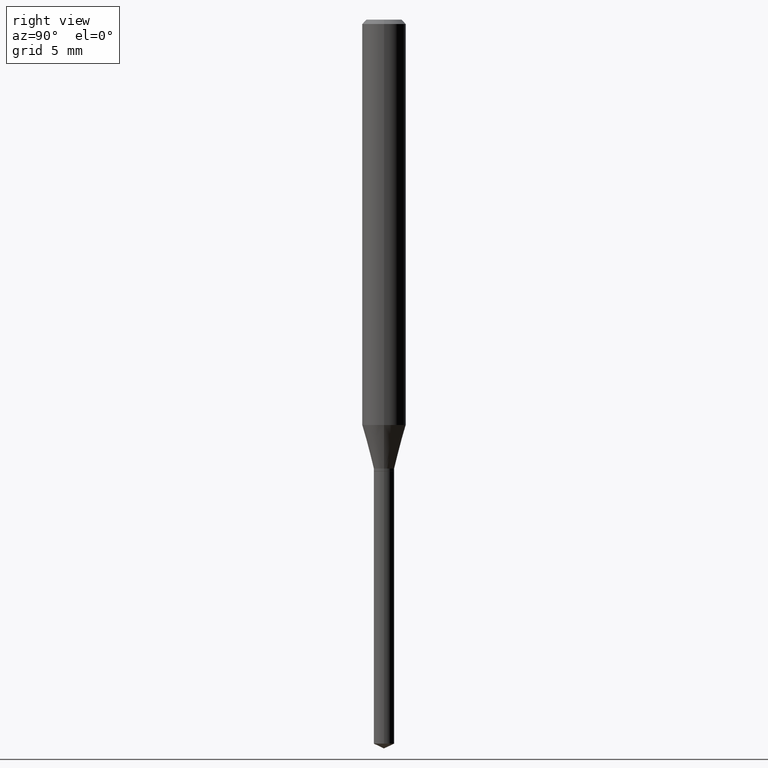
[diagram: clean part render]
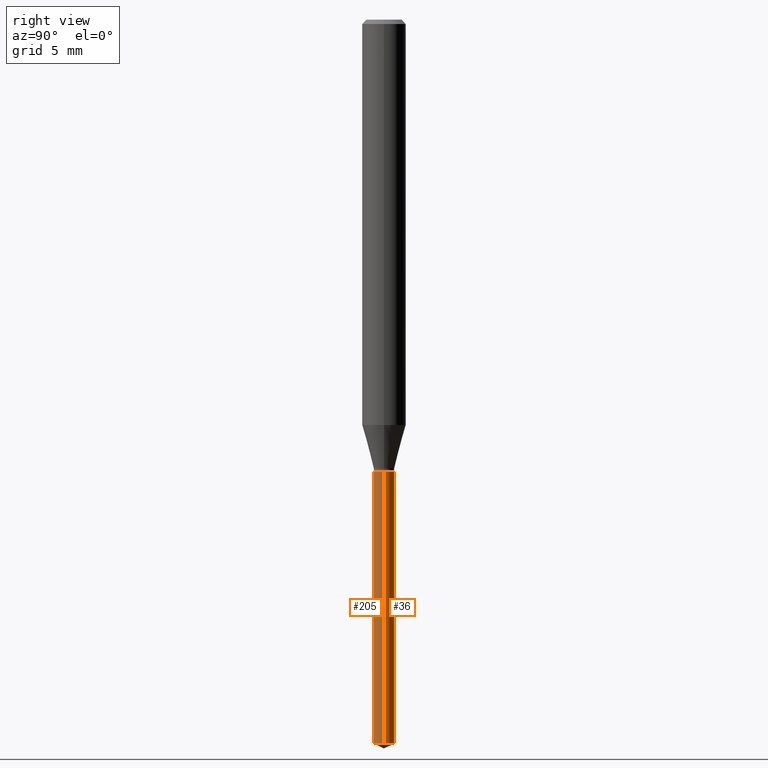
[diagram: same view with one multi-face feature highlighted, each face labeled with its STEP entity id]
A machine part, right view. The highlighted faces form ONE feature: a constant-radius fillet chain: 2 tangent blend faces with common blend radius 0.6998 mm. The faces share edges in the B-rep.
Their STEP definitions:
[1] entity #36 (Cylinder):
#36 = ADVANCED_FACE ( 'NONE', ( #125 ), #241, .T. ) ;
#60 = ORIENTED_EDGE ( 'NONE', *, *, #141, .T. ) ;
#63 = DIRECTION ( 'NONE',  ( -2.445468806185136597E-29, 3.491481338843145583E-15, 1.000000000000000000 ) ) ;
#108 = AXIS2_PLACEMENT_3D ( 'NONE', #176, #484, #138 ) ;
#112 = VERTEX_POINT ( 'NONE', #431 ) ;
#124 = CARTESIAN_POINT ( 'NONE',  ( 2.985917412352051713E-29, -4.263098714727481320E-15, -1.221000000000000085 ) ) ;
#125 = FACE_OUTER_BOUND ( 'NONE', #270, .T. ) ;
#136 = CARTESIAN_POINT ( 'NONE',  ( 0.02755000000000000157, -4.455479336497738113E-15, -1.221000000000000085 ) ) ;
#137 = DIRECTION ( 'NONE',  ( -2.445468806185136597E-29, 3.491481338843145583E-15, 1.000000000000000000 ) ) ;
#138 = DIRECTION ( 'NONE',  ( 1.000000000000000000, -6.982962677686256455E-15, 0.000000000000000000 ) ) ;
#141 = EDGE_CURVE ( 'NONE', #343, #112, #424, .T. ) ;
#175 = AXIS2_PLACEMENT_3D ( 'NONE', #366, #137, #213 ) ;
#176 = CARTESIAN_POINT ( 'NONE',  ( 4.783711689454089420E-29, -6.829872477576109136E-15, -1.956153224017830317 ) ) ;
#180 = ORIENTED_EDGE ( 'NONE', *, *, #446, .F. ) ;
#191 = AXIS2_PLACEMENT_3D ( 'NONE', #124, #63, #436 ) ;
#209 = CIRCLE ( 'NONE', #108, 0.02755000000000000157 ) ;
#213 = DIRECTION ( 'NONE',  ( 1.000000000000000000, -6.982962677686256455E-15, 0.000000000000000000 ) ) ;
#233 = LINE ( 'NONE', #389, #321 ) ;
#241 = CYLINDRICAL_SURFACE ( 'NONE', #191, 0.02755000000000000157 ) ;
#253 = CIRCLE ( 'NONE', #175, 0.02755000000000000157 ) ;
#268 = DIRECTION ( 'NONE',  ( -2.445468806185136877E-29, 3.491481338843145188E-15, 1.000000000000000000 ) ) ;
#270 = EDGE_LOOP ( 'NONE', ( #478, #60, #459, #180 ) ) ;
#290 = VERTEX_POINT ( 'NONE', #338 ) ;
#321 = VECTOR ( 'NONE', #406, 39.37007874015748143 ) ;
#338 = CARTESIAN_POINT ( 'NONE',  ( 0.02755000000000000157, -7.022253099346365929E-15, -1.956153224017830317 ) ) ;
#343 = VERTEX_POINT ( 'NONE', #363 ) ;
#363 = CARTESIAN_POINT ( 'NONE',  ( -0.02755000000000000157, -6.634117953874201795E-15, -1.956153224017830317 ) ) ;
#366 = CARTESIAN_POINT ( 'NONE',  ( 2.985917412352052273E-29, -4.263098714727481320E-15, -1.221000000000000085 ) ) ;
#379 = VERTEX_POINT ( 'NONE', #136 ) ;
#380 = CARTESIAN_POINT ( 'NONE',  ( -0.02755000000000000157, -4.067344191025573190E-15, -1.221000000000000085 ) ) ;
#389 = CARTESIAN_POINT ( 'NONE',  ( 0.02755000000000000157, -4.455479336497738113E-15, -1.221000000000000085 ) ) ;
#406 = DIRECTION ( 'NONE',  ( -2.445468806185136877E-29, 3.491481338843145188E-15, 1.000000000000000000 ) ) ;
#424 = LINE ( 'NONE', #380, #437 ) ;
#431 = CARTESIAN_POINT ( 'NONE',  ( -0.02755000000000000157, -5.350731072449887887E-15, -1.221000000000000085 ) ) ;
#436 = DIRECTION ( 'NONE',  ( 1.000000000000000000, -6.982962677686274599E-15, 0.000000000000000000 ) ) ;
#437 = VECTOR ( 'NONE', #268, 39.37007874015748143 ) ;
#446 = EDGE_CURVE ( 'NONE', #290, #379, #233, .T. ) ;
#457 = EDGE_CURVE ( 'NONE', #379, #112, #253, .T. ) ;
#459 = ORIENTED_EDGE ( 'NONE', *, *, #457, .F. ) ;
#465 = EDGE_CURVE ( 'NONE', #290, #343, #209, .T. ) ;
#478 = ORIENTED_EDGE ( 'NONE', *, *, #465, .T. ) ;
#484 = DIRECTION ( 'NONE',  ( -2.445468806185136597E-29, 3.491481338843145583E-15, 1.000000000000000000 ) ) ;
[2] entity #205 (Cylinder):
#10 = AXIS2_PLACEMENT_3D ( 'NONE', #323, #432, #29 ) ;
#29 = DIRECTION ( 'NONE',  ( 1.000000000000000000, -6.982962677686256455E-15, 0.000000000000000000 ) ) ;
#64 = DIRECTION ( 'NONE',  ( 1.000000000000000000, -6.982962677686274599E-15, 0.000000000000000000 ) ) ;
#94 = ORIENTED_EDGE ( 'NONE', *, *, #446, .T. ) ;
#98 = EDGE_CURVE ( 'NONE', #343, #290, #113, .T. ) ;
#112 = VERTEX_POINT ( 'NONE', #431 ) ;
#113 = CIRCLE ( 'NONE', #362, 0.02755000000000000157 ) ;
#136 = CARTESIAN_POINT ( 'NONE',  ( 0.02755000000000000157, -4.455479336497738113E-15, -1.221000000000000085 ) ) ;
#141 = EDGE_CURVE ( 'NONE', #343, #112, #424, .T. ) ;
#199 = ORIENTED_EDGE ( 'NONE', *, *, #141, .F. ) ;
#201 = CIRCLE ( 'NONE', #10, 0.02755000000000000157 ) ;
#205 = ADVANCED_FACE ( 'NONE', ( #315 ), #445, .T. ) ;
#233 = LINE ( 'NONE', #389, #321 ) ;
#260 = ORIENTED_EDGE ( 'NONE', *, *, #98, .T. ) ;
#268 = DIRECTION ( 'NONE',  ( -2.445468806185136877E-29, 3.491481338843145188E-15, 1.000000000000000000 ) ) ;
#275 = AXIS2_PLACEMENT_3D ( 'NONE', #385, #433, #64 ) ;
#290 = VERTEX_POINT ( 'NONE', #338 ) ;
#291 = EDGE_LOOP ( 'NONE', ( #199, #260, #94, #359 ) ) ;
#309 = DIRECTION ( 'NONE',  ( 1.000000000000000000, -6.982962677686256455E-15, 0.000000000000000000 ) ) ;
#315 = FACE_OUTER_BOUND ( 'NONE', #291, .T. ) ;
#320 = DIRECTION ( 'NONE',  ( -2.445468806185136597E-29, 3.491481338843145583E-15, 1.000000000000000000 ) ) ;
#321 = VECTOR ( 'NONE', #406, 39.37007874015748143 ) ;
#323 = CARTESIAN_POINT ( 'NONE',  ( 2.985917412352052273E-29, -4.263098714727481320E-15, -1.221000000000000085 ) ) ;
#338 = CARTESIAN_POINT ( 'NONE',  ( 0.02755000000000000157, -7.022253099346365929E-15, -1.956153224017830317 ) ) ;
#343 = VERTEX_POINT ( 'NONE', #363 ) ;
#359 = ORIENTED_EDGE ( 'NONE', *, *, #372, .F. ) ;
#361 = CARTESIAN_POINT ( 'NONE',  ( 4.783711689454089420E-29, -6.829872477576109136E-15, -1.956153224017830317 ) ) ;
#362 = AXIS2_PLACEMENT_3D ( 'NONE', #361, #320, #309 ) ;
#363 = CARTESIAN_POINT ( 'NONE',  ( -0.02755000000000000157, -6.634117953874201795E-15, -1.956153224017830317 ) ) ;
#372 = EDGE_CURVE ( 'NONE', #112, #379, #201, .T. ) ;
#379 = VERTEX_POINT ( 'NONE', #136 ) ;
#380 = CARTESIAN_POINT ( 'NONE',  ( -0.02755000000000000157, -4.067344191025573190E-15, -1.221000000000000085 ) ) ;
#385 = CARTESIAN_POINT ( 'NONE',  ( 2.985917412352051713E-29, -4.263098714727481320E-15, -1.221000000000000085 ) ) ;
#389 = CARTESIAN_POINT ( 'NONE',  ( 0.02755000000000000157, -4.455479336497738113E-15, -1.221000000000000085 ) ) ;
#406 = DIRECTION ( 'NONE',  ( -2.445468806185136877E-29, 3.491481338843145188E-15, 1.000000000000000000 ) ) ;
#424 = LINE ( 'NONE', #380, #437 ) ;
#431 = CARTESIAN_POINT ( 'NONE',  ( -0.02755000000000000157, -5.350731072449887887E-15, -1.221000000000000085 ) ) ;
#432 = DIRECTION ( 'NONE',  ( -2.445468806185136597E-29, 3.491481338843145583E-15, 1.000000000000000000 ) ) ;
#433 = DIRECTION ( 'NONE',  ( -2.445468806185136597E-29, 3.491481338843145583E-15, 1.000000000000000000 ) ) ;
#437 = VECTOR ( 'NONE', #268, 39.37007874015748143 ) ;
#445 = CYLINDRICAL_SURFACE ( 'NONE', #275, 0.02755000000000000157 ) ;
#446 = EDGE_CURVE ( 'NONE', #290, #379, #233, .T. ) ;